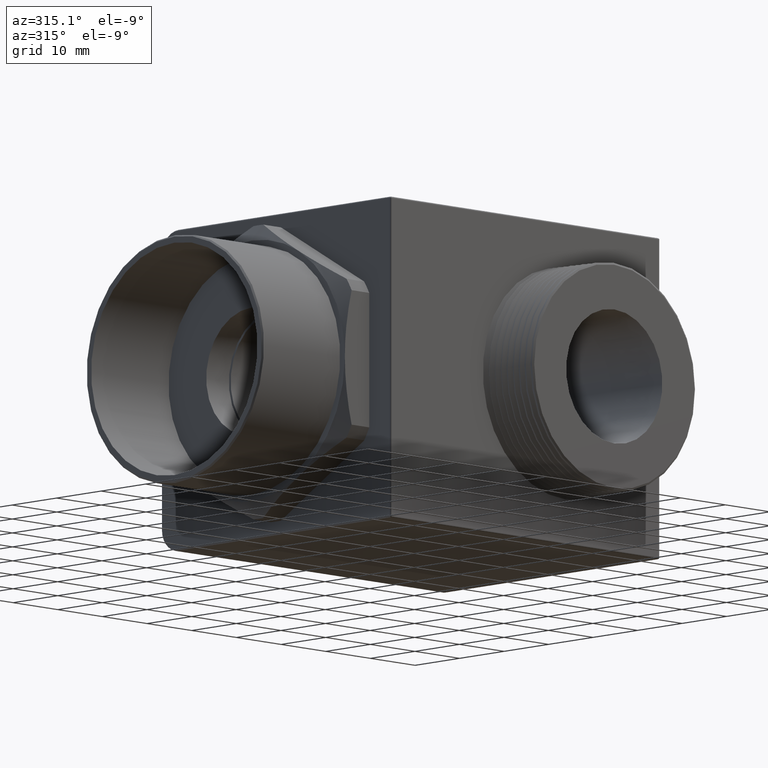
[diagram: clean part render]
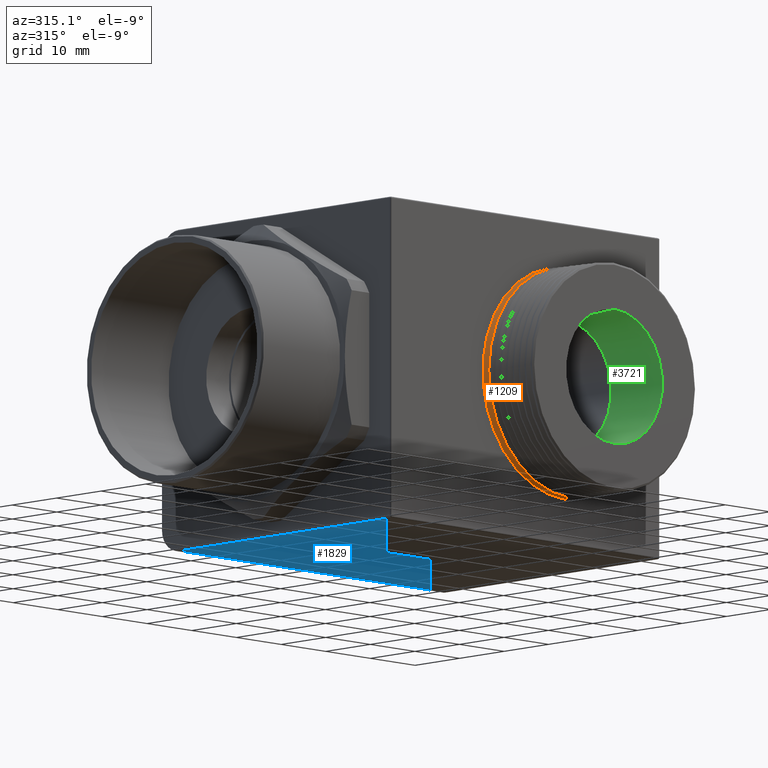
[diagram: same view with three faces highlighted in distinct colors, each labeled with its STEP entity id]
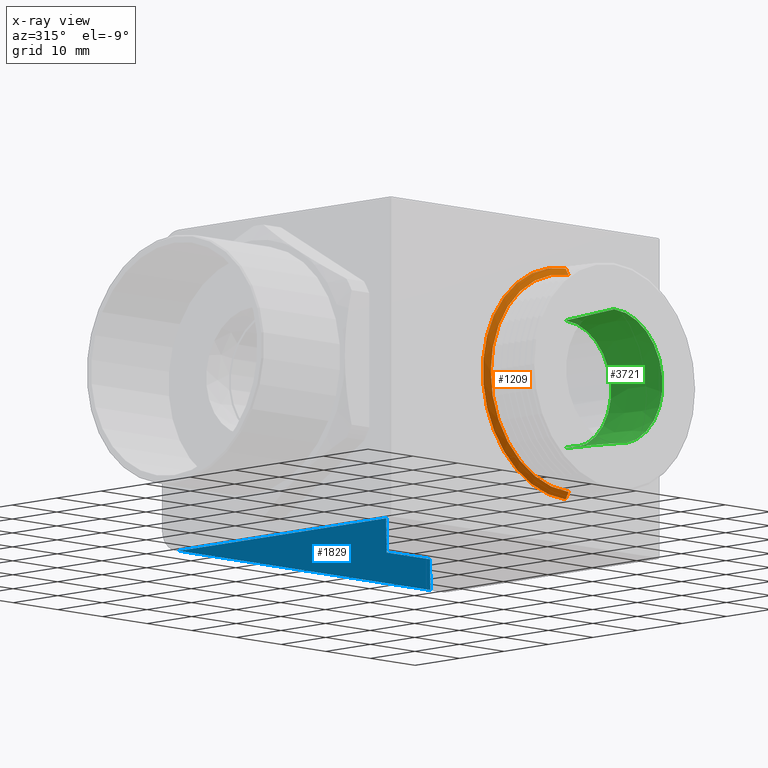
[diagram: x-ray of the same camera — body ghosted, the three highlighted faces saturated]
A machine part, auxiliary view with three faces highlighted in distinct colors.
The next image is the same camera in x-ray (body ghosted, the three faces saturated) — at least one of them is partly hidden behind the body in this view.
Their STEP definitions:

[orange] entity #1209 — the highlighted conical surface has half-angle 60 deg.
#90 = CARTESIAN_POINT ( 'NONE',  ( 1.112449999999999900, -1.040669743523515700, -0.6855387000000000600 ) ) ;
#96 = CARTESIAN_POINT ( 'NONE',  ( 1.112450000000000200, -1.040669743523515700, 0.6855387000000000600 ) ) ;
#188 = CARTESIAN_POINT ( 'NONE',  ( 1.112449999999999900, -1.014999999999995000, 0.7299999999999999800 ) ) ;
#201 = DIRECTION ( 'NONE',  ( 0.0000000000000000000, 0.4999999999999993900, 0.8660254037844389300 ) ) ;
#202 = VECTOR ( 'NONE', #201, 39.37007874015748100 ) ;
#203 = CARTESIAN_POINT ( 'NONE',  ( 1.112449999999999900, -1.040669743523515700, 0.6855387000000000600 ) ) ;
#204 = LINE ( 'NONE', #203, #202 ) ;
#245 = CARTESIAN_POINT ( 'NONE',  ( 1.112450000000000200, -1.014999999999995000, -0.7299999999999999800 ) ) ;
#246 = DIRECTION ( 'NONE',  ( 1.060575238724907500E-016, 0.4999999999999993900, -0.8660254037844389300 ) ) ;
#247 = VECTOR ( 'NONE', #246, 39.37007874015748100 ) ;
#248 = CARTESIAN_POINT ( 'NONE',  ( 1.112450000000000200, -1.040669743523515700, -0.6855387000000000600 ) ) ;
#249 = LINE ( 'NONE', #248, #247 ) ;
#719 = DIRECTION ( 'NONE',  ( 0.0000000000000000000, 0.0000000000000000000, -1.000000000000000000 ) ) ;
#720 = DIRECTION ( 'NONE',  ( 0.0000000000000000000, -1.000000000000000000, 0.0000000000000000000 ) ) ;
#721 = CARTESIAN_POINT ( 'NONE',  ( 1.112449999999999900, -1.014999999999995000, -2.785979454945908300E-017 ) ) ;
#722 = AXIS2_PLACEMENT_3D ( 'NONE', #721, #720, #719 ) ;
#723 = CIRCLE ( 'NONE', #722, 0.7299999999999999800 ) ;
#1013 = DIRECTION ( 'NONE',  ( 0.0000000000000000000, 0.0000000000000000000, -1.000000000000000000 ) ) ;
#1014 = DIRECTION ( 'NONE',  ( 0.0000000000000000000, -1.000000000000000000, 0.0000000000000000000 ) ) ;
#1015 = CARTESIAN_POINT ( 'NONE',  ( 1.112449999999999900, -1.040669743523515700, -2.785979454945908300E-017 ) ) ;
#1016 = AXIS2_PLACEMENT_3D ( 'NONE', #1015, #1014, #1013 ) ;
#1017 = CIRCLE ( 'NONE', #1016, 0.6855387000000000600 ) ;
#1204 = ORIENTED_EDGE ( 'NONE', *, *, #3670, .T. ) ;
#1205 = ORIENTED_EDGE ( 'NONE', *, *, #1937, .T. ) ;
#1206 = ORIENTED_EDGE ( 'NONE', *, *, #3826, .F. ) ;
#1207 = ORIENTED_EDGE ( 'NONE', *, *, #1947, .F. ) ;
#1208 = EDGE_LOOP ( 'NONE', ( #1207, #1206, #1205, #1204 ) ) ;
#1209 = ADVANCED_FACE ( 'NONE', ( #2256 ), #2309, .T. ) ;
#1875 = VERTEX_POINT ( 'NONE', #96 ) ;
#1878 = VERTEX_POINT ( 'NONE', #90 ) ;
#1937 = EDGE_CURVE ( 'NONE', #1875, #1945, #204, .T. ) ;
#1945 = VERTEX_POINT ( 'NONE', #188 ) ;
#1947 = EDGE_CURVE ( 'NONE', #1878, #1948, #249, .T. ) ;
#1948 = VERTEX_POINT ( 'NONE', #245 ) ;
#2256 = FACE_OUTER_BOUND ( 'NONE', #1208, .T. ) ;
#2305 = DIRECTION ( 'NONE',  ( 0.0000000000000000000, 0.0000000000000000000, 1.000000000000000000 ) ) ;
#2306 = DIRECTION ( 'NONE',  ( 0.0000000000000000000, 1.000000000000000000, 0.0000000000000000000 ) ) ;
#2307 = CARTESIAN_POINT ( 'NONE',  ( 1.112449999999999900, -1.040669743523515700, -2.785979454945908300E-017 ) ) ;
#2308 = AXIS2_PLACEMENT_3D ( 'NONE', #2307, #2306, #2305 ) ;
#2309 = CONICAL_SURFACE ( 'NONE', #2308, 0.6855387000000000600, 1.047197551196598500 ) ;
#3670 = EDGE_CURVE ( 'NONE', #1945, #1948, #723, .T. ) ;
#3826 = EDGE_CURVE ( 'NONE', #1875, #1878, #1017, .T. ) ;

[blue] entity #1829 — the highlighted planar face has unit normal (0, 0, -1).
#1098 = VECTOR ( 'NONE', #1138, 39.37007874015748900 ) ;
#1099 = CARTESIAN_POINT ( 'NONE',  ( 1.893833333333333700, 0.9658333333333334300, -1.014999999999999900 ) ) ;
#1100 = LINE ( 'NONE', #1099, #1098 ) ;
#1101 = CARTESIAN_POINT ( 'NONE',  ( 1.795499999999999200, 0.8674999999999999400, -1.014999999999999900 ) ) ;
#1137 = CARTESIAN_POINT ( 'NONE',  ( 0.9279999999999899400, 0.0000000000000000000, -1.014999999999999900 ) ) ;
#1138 = DIRECTION ( 'NONE',  ( 0.7071067811865512400, 0.7071067811865436900, 0.0000000000000000000 ) ) ;
#1427 = EDGE_CURVE ( 'NONE', #1508, #1450, #2676, .T. ) ;
#1450 = VERTEX_POINT ( 'NONE', #2701 ) ;
#1452 = EDGE_CURVE ( 'NONE', #1450, #3874, #2700, .T. ) ;
#1508 = VERTEX_POINT ( 'NONE', #2861 ) ;
#1750 = EDGE_LOOP ( 'NONE', ( #1806, #1807, #1808, #1809, #1812 ) ) ;
#1806 = ORIENTED_EDGE ( 'NONE', *, *, #3872, .F. ) ;
#1807 = ORIENTED_EDGE ( 'NONE', *, *, #1452, .F. ) ;
#1808 = ORIENTED_EDGE ( 'NONE', *, *, #1427, .F. ) ;
#1809 = ORIENTED_EDGE ( 'NONE', *, *, #1810, .T. ) ;
#1810 = EDGE_CURVE ( 'NONE', #1508, #1811, #3401, .T. ) ;
#1811 = VERTEX_POINT ( 'NONE', #3397 ) ;
#1812 = ORIENTED_EDGE ( 'NONE', *, *, #1813, .T. ) ;
#1813 = EDGE_CURVE ( 'NONE', #1811, #3871, #3396, .T. ) ;
#1829 = ADVANCED_FACE ( 'NONE', ( #3428 ), #3427, .T. ) ;
#2673 = DIRECTION ( 'NONE',  ( 0.7071067811865474600, 0.7071067811865474600, 0.0000000000000000000 ) ) ;
#2674 = VECTOR ( 'NONE', #2673, 39.37007874015748900 ) ;
#2675 = CARTESIAN_POINT ( 'NONE',  ( 1.702383333333338500, 1.157283333333328300, -1.014999999999999900 ) ) ;
#2676 = LINE ( 'NONE', #2675, #2674 ) ;
#2697 = DIRECTION ( 'NONE',  ( 1.000000000000000000, 0.0000000000000000000, 0.0000000000000000000 ) ) ;
#2698 = VECTOR ( 'NONE', #2697, 39.37007874015748100 ) ;
#2699 = CARTESIAN_POINT ( 'NONE',  ( 1.943000000000000100, 0.0000000000000000000, -1.014999999999999900 ) ) ;
#2700 = LINE ( 'NONE', #2699, #2698 ) ;
#2701 = CARTESIAN_POINT ( 'NONE',  ( 0.5451000000000101300, 1.365923996832131600E-016, -1.014999999999999900 ) ) ;
#2861 = CARTESIAN_POINT ( 'NONE',  ( -0.4199000000000000000, -0.9650000000000099600, -1.014999999999999900 ) ) ;
#3393 = DIRECTION ( 'NONE',  ( 1.000000000000000000, 0.0000000000000000000, 0.0000000000000000000 ) ) ;
#3394 = VECTOR ( 'NONE', #3393, 39.37007874015748100 ) ;
#3395 = CARTESIAN_POINT ( 'NONE',  ( 1.943000000000000100, 0.8674999999999999400, -1.014999999999999900 ) ) ;
#3396 = LINE ( 'NONE', #3395, #3394 ) ;
#3397 = CARTESIAN_POINT ( 'NONE',  ( -0.4199000000000000500, 0.8674999999999999400, -1.014999999999999900 ) ) ;
#3398 = DIRECTION ( 'NONE',  ( 0.0000000000000000000, 1.000000000000000000, 0.0000000000000000000 ) ) ;
#3399 = VECTOR ( 'NONE', #3398, 39.37007874015748100 ) ;
#3400 = CARTESIAN_POINT ( 'NONE',  ( -0.4199000000000000000, 0.8674999999999998300, -1.014999999999999900 ) ) ;
#3401 = LINE ( 'NONE', #3400, #3399 ) ;
#3423 = DIRECTION ( 'NONE',  ( -1.000000000000000000, 0.0000000000000000000, 0.0000000000000000000 ) ) ;
#3424 = DIRECTION ( 'NONE',  ( 0.0000000000000000000, 0.0000000000000000000, -1.000000000000000000 ) ) ;
#3425 = CARTESIAN_POINT ( 'NONE',  ( 1.943000000000000100, 0.9166666666666666300, -1.014999999999999900 ) ) ;
#3426 = AXIS2_PLACEMENT_3D ( 'NONE', #3425, #3424, #3423 ) ;
#3427 = PLANE ( 'NONE',  #3426 ) ;
#3428 = FACE_OUTER_BOUND ( 'NONE', #1750, .T. ) ;
#3871 = VERTEX_POINT ( 'NONE', #1101 ) ;
#3872 = EDGE_CURVE ( 'NONE', #3874, #3871, #1100, .T. ) ;
#3874 = VERTEX_POINT ( 'NONE', #1137 ) ;

[green] entity #3721 — the highlighted conical surface has half-angle 3 deg.
#52 = EDGE_CURVE ( 'NONE', #1357, #1426, #2078, .T. ) ;
#811 = DIRECTION ( 'NONE',  ( 0.0000000000000000000, 0.0000000000000000000, -1.000000000000000000 ) ) ;
#812 = DIRECTION ( 'NONE',  ( 0.0000000000000000000, -1.000000000000000000, 0.0000000000000000000 ) ) ;
#813 = AXIS2_PLACEMENT_3D ( 'NONE', #815, #812, #811 ) ;
#814 = CONICAL_SURFACE ( 'NONE', #813, 0.4240353450917078700, 0.05235987755983014000 ) ;
#815 = CARTESIAN_POINT ( 'NONE',  ( 1.112449999999999900, -1.444999999999999800, -2.785979454945908300E-017 ) ) ;
#816 = FACE_OUTER_BOUND ( 'NONE', #3683, .T. ) ;
#824 = DIRECTION ( 'NONE',  ( 0.0000000000000000000, 0.0000000000000000000, -1.000000000000000000 ) ) ;
#825 = DIRECTION ( 'NONE',  ( 0.0000000000000000000, -1.000000000000000000, 0.0000000000000000000 ) ) ;
#826 = CARTESIAN_POINT ( 'NONE',  ( 1.112449999999999900, -1.014999999999997200, -2.785979454945908300E-017 ) ) ;
#827 = AXIS2_PLACEMENT_3D ( 'NONE', #826, #825, #824 ) ;
#828 = CIRCLE ( 'NONE', #827, 0.4014999999999999100 ) ;
#1352 = EDGE_CURVE ( 'NONE', #1355, #1426, #2559, .T. ) ;
#1355 = VERTEX_POINT ( 'NONE', #2547 ) ;
#1356 = EDGE_CURVE ( 'NONE', #1414, #1357, #2546, .T. ) ;
#1357 = VERTEX_POINT ( 'NONE', #2542 ) ;
#1414 = VERTEX_POINT ( 'NONE', #2636 ) ;
#1426 = VERTEX_POINT ( 'NONE', #2677 ) ;
#2074 = DIRECTION ( 'NONE',  ( 0.0000000000000000000, 0.0000000000000000000, 1.000000000000000000 ) ) ;
#2075 = DIRECTION ( 'NONE',  ( 0.0000000000000000000, 1.000000000000000000, 0.0000000000000000000 ) ) ;
#2076 = CARTESIAN_POINT ( 'NONE',  ( 1.112449999999999900, -1.444999999999999800, -2.785979454945908300E-017 ) ) ;
#2077 = AXIS2_PLACEMENT_3D ( 'NONE', #2076, #2075, #2074 ) ;
#2078 = CIRCLE ( 'NONE', #2077, 0.4240353450917078700 ) ;
#2542 = CARTESIAN_POINT ( 'NONE',  ( 1.112449999999999900, -1.444999999999999800, 0.4240353450917078700 ) ) ;
#2543 = DIRECTION ( 'NONE',  ( 6.409306129323741000E-018, -0.9986295347545738300, 0.05233595624294409100 ) ) ;
#2544 = VECTOR ( 'NONE', #2543, 39.37007874015748900 ) ;
#2545 = CARTESIAN_POINT ( 'NONE',  ( 1.112449999999999900, -1.444999999999999800, 0.4240353450917078700 ) ) ;
#2546 = LINE ( 'NONE', #2545, #2544 ) ;
#2547 = CARTESIAN_POINT ( 'NONE',  ( 1.112449999999999900, -1.014999999999997200, -0.4014999999999999100 ) ) ;
#2556 = DIRECTION ( 'NONE',  ( 0.0000000000000000000, -0.9986295347545738300, -0.05233595624294409100 ) ) ;
#2557 = VECTOR ( 'NONE', #2556, 39.37007874015748900 ) ;
#2558 = CARTESIAN_POINT ( 'NONE',  ( 1.112449999999999900, -1.444999999999999800, -0.4240353450917078700 ) ) ;
#2559 = LINE ( 'NONE', #2558, #2557 ) ;
#2636 = CARTESIAN_POINT ( 'NONE',  ( 1.112449999999999900, -1.014999999999997200, 0.4014999999999999100 ) ) ;
#2677 = CARTESIAN_POINT ( 'NONE',  ( 1.112449999999999900, -1.444999999999999800, -0.4240353450917078700 ) ) ;
#3667 = ORIENTED_EDGE ( 'NONE', *, *, #52, .F. ) ;
#3683 = EDGE_LOOP ( 'NONE', ( #3728, #3724, #3684, #3667 ) ) ;
#3684 = ORIENTED_EDGE ( 'NONE', *, *, #1352, .T. ) ;
#3714 = EDGE_CURVE ( 'NONE', #1355, #1414, #828, .T. ) ;
#3721 = ADVANCED_FACE ( 'NONE', ( #816 ), #814, .F. ) ;
#3724 = ORIENTED_EDGE ( 'NONE', *, *, #3714, .F. ) ;
#3728 = ORIENTED_EDGE ( 'NONE', *, *, #1356, .F. ) ;